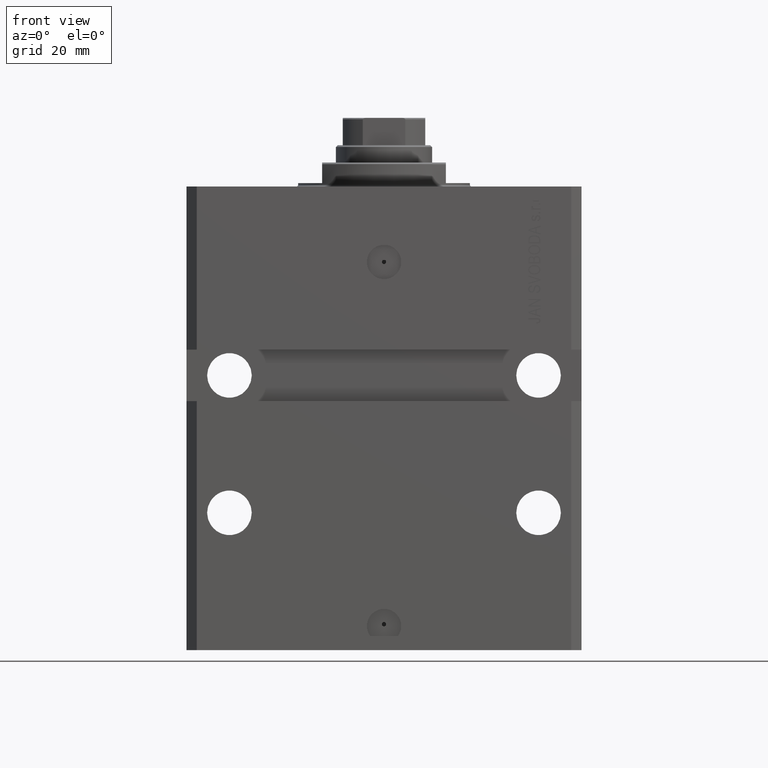
[diagram: clean part render]
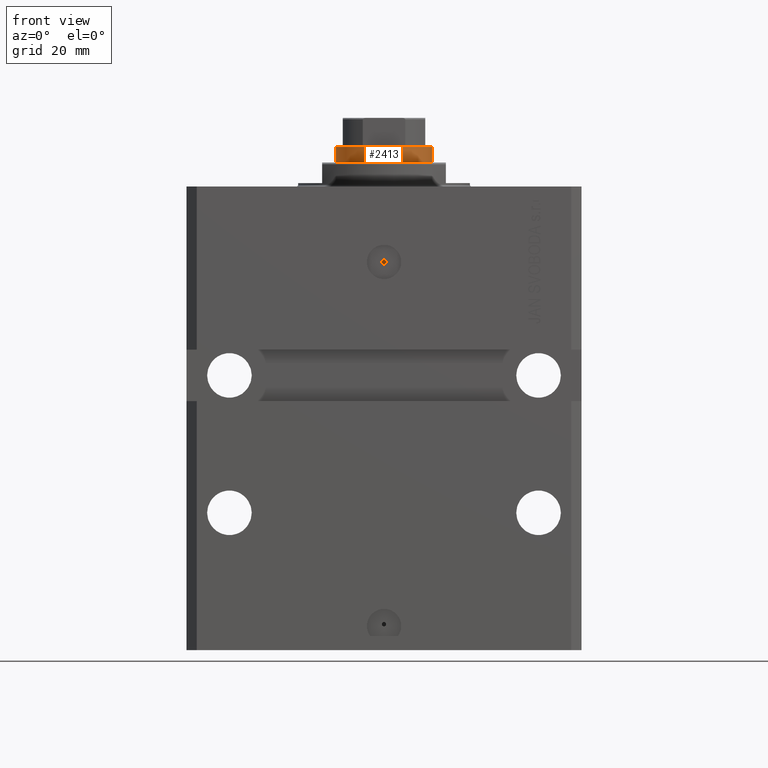
[diagram: same view with one face highlighted and labeled with its STEP entity id]
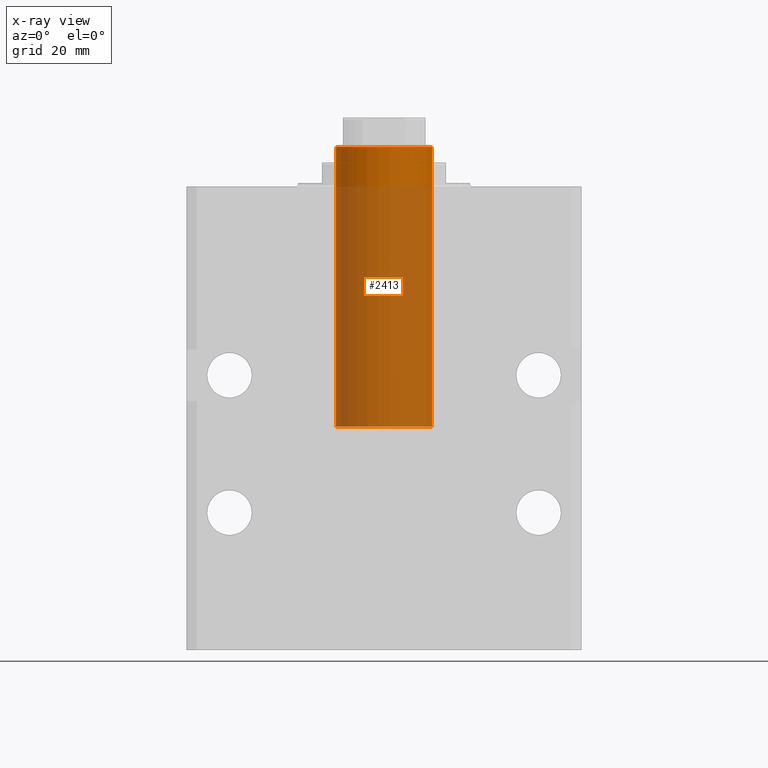
[diagram: x-ray of the same camera — body ghosted, the highlighted face saturated]
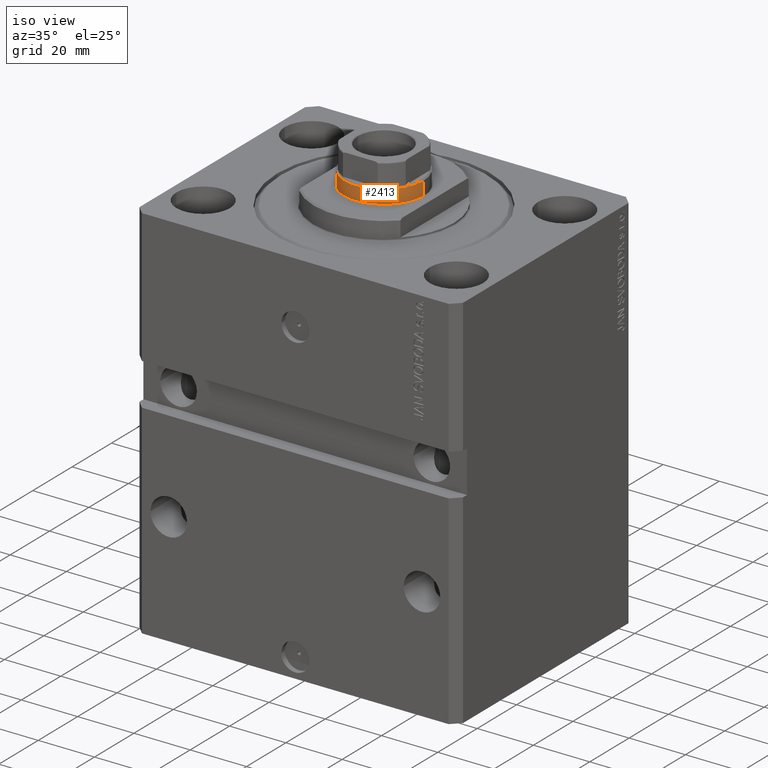
[diagram: same view with one face highlighted and labeled with its STEP entity id]
A machine part, front view. The second image highlights one B-rep face of the part: STEP entity #2413.
The next image is the same camera in x-ray: the body ghosted, the highlighted face saturated — about 86% of this face is hidden behind the body in this view.
A second angle (iso view) of the same face is appended — the face is thin or edge-on in the first view.
In plain terms, the highlighted cylindrical surface (partial cylindrical patch) has radius 14 mm, axis along (-0, -0, -1).
Its self-contained STEP definition (entity closure, byte-faithful):
#16 = CARTESIAN_POINT ( 'NONE',  ( 0.000000000000000000, 0.000000000000000000, 128.5999999999999659 ) ) ;
#41 = ORIENTED_EDGE ( 'NONE', *, *, #5561, .T. ) ;
#2413 = ADVANCED_FACE ( 'NONE', ( #11337 ), #25175, .T. ) ;
#2549 = CARTESIAN_POINT ( 'NONE',  ( 14.00000000000000000, 1.714505518806294638E-15, 128.5999999999999659 ) ) ;
#2741 = ORIENTED_EDGE ( 'NONE', *, *, #14969, .T. ) ;
#4043 = EDGE_CURVE ( 'NONE', #16886, #46103, #8790, .T. ) ;
#4174 = VECTOR ( 'NONE', #37191, 1000.000000000000000 ) ;
#5561 = EDGE_CURVE ( 'NONE', #16886, #45224, #44710, .T. ) ;
#6917 = EDGE_LOOP ( 'NONE', ( #23312, #41, #2741, #41018 ) ) ;
#8790 = LINE ( 'NONE', #15819, #4174 ) ;
#9478 = AXIS2_PLACEMENT_3D ( 'NONE', #16, #35241, #11058 ) ;
#11058 = DIRECTION ( 'NONE',  ( 1.000000000000000000, 0.000000000000000000, 0.000000000000000000 ) ) ;
#11318 = DIRECTION ( 'NONE',  ( -0.000000000000000000, -0.000000000000000000, -1.000000000000000000 ) ) ;
#11337 = FACE_OUTER_BOUND ( 'NONE', #6917, .T. ) ;
#14969 = EDGE_CURVE ( 'NONE', #45224, #16809, #18117, .T. ) ;
#15093 = EDGE_CURVE ( 'NONE', #16809, #46103, #43723, .T. ) ;
#15819 = CARTESIAN_POINT ( 'NONE',  ( 14.00000000000000000, 1.714505518806294638E-15, 129.0999999999999943 ) ) ;
#16204 = CARTESIAN_POINT ( 'NONE',  ( 0.000000000000000000, 0.000000000000000000, 47.10000000000000142 ) ) ;
#16809 = VERTEX_POINT ( 'NONE', #33795 ) ;
#16886 = VERTEX_POINT ( 'NONE', #2549 ) ;
#18117 = LINE ( 'NONE', #43486, #31717 ) ;
#23312 = ORIENTED_EDGE ( 'NONE', *, *, #4043, .F. ) ;
#24216 = AXIS2_PLACEMENT_3D ( 'NONE', #16204, #44405, #36890 ) ;
#25175 = CYLINDRICAL_SURFACE ( 'NONE', #37865, 14.00000000000000000 ) ;
#25337 = CARTESIAN_POINT ( 'NONE',  ( -14.00000000000000000, 0.000000000000000000, 128.5999999999999659 ) ) ;
#25409 = DIRECTION ( 'NONE',  ( -0.000000000000000000, -0.000000000000000000, -1.000000000000000000 ) ) ;
#31717 = VECTOR ( 'NONE', #11318, 1000.000000000000000 ) ;
#32924 = CARTESIAN_POINT ( 'NONE',  ( 0.000000000000000000, 0.000000000000000000, 129.0999999999999943 ) ) ;
#33795 = CARTESIAN_POINT ( 'NONE',  ( -14.00000000000000000, 0.000000000000000000, 47.10000000000000142 ) ) ;
#34118 = CARTESIAN_POINT ( 'NONE',  ( 14.00000000000000000, 1.714505518806294638E-15, 47.10000000000000142 ) ) ;
#35241 = DIRECTION ( 'NONE',  ( 0.000000000000000000, 0.000000000000000000, -1.000000000000000000 ) ) ;
#36890 = DIRECTION ( 'NONE',  ( 1.000000000000000000, 0.000000000000000000, 0.000000000000000000 ) ) ;
#37191 = DIRECTION ( 'NONE',  ( -0.000000000000000000, -0.000000000000000000, -1.000000000000000000 ) ) ;
#37865 = AXIS2_PLACEMENT_3D ( 'NONE', #32924, #25409, #40200 ) ;
#40200 = DIRECTION ( 'NONE',  ( -1.000000000000000000, 0.000000000000000000, 0.000000000000000000 ) ) ;
#41018 = ORIENTED_EDGE ( 'NONE', *, *, #15093, .T. ) ;
#43486 = CARTESIAN_POINT ( 'NONE',  ( -14.00000000000000000, 0.000000000000000000, 129.0999999999999943 ) ) ;
#43723 = CIRCLE ( 'NONE', #24216, 14.00000000000000000 ) ;
#44405 = DIRECTION ( 'NONE',  ( 0.000000000000000000, 0.000000000000000000, 1.000000000000000000 ) ) ;
#44710 = CIRCLE ( 'NONE', #9478, 14.00000000000000000 ) ;
#45224 = VERTEX_POINT ( 'NONE', #25337 ) ;
#46103 = VERTEX_POINT ( 'NONE', #34118 ) ;